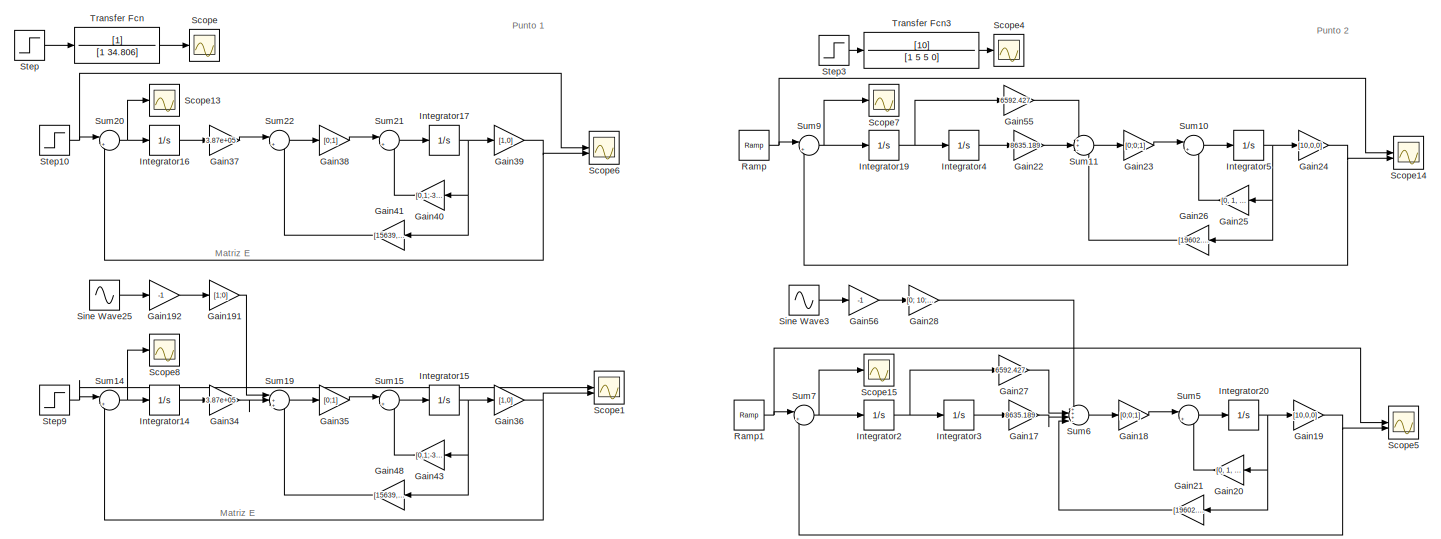
[diagram: root canvas - part 1/5, top left region]
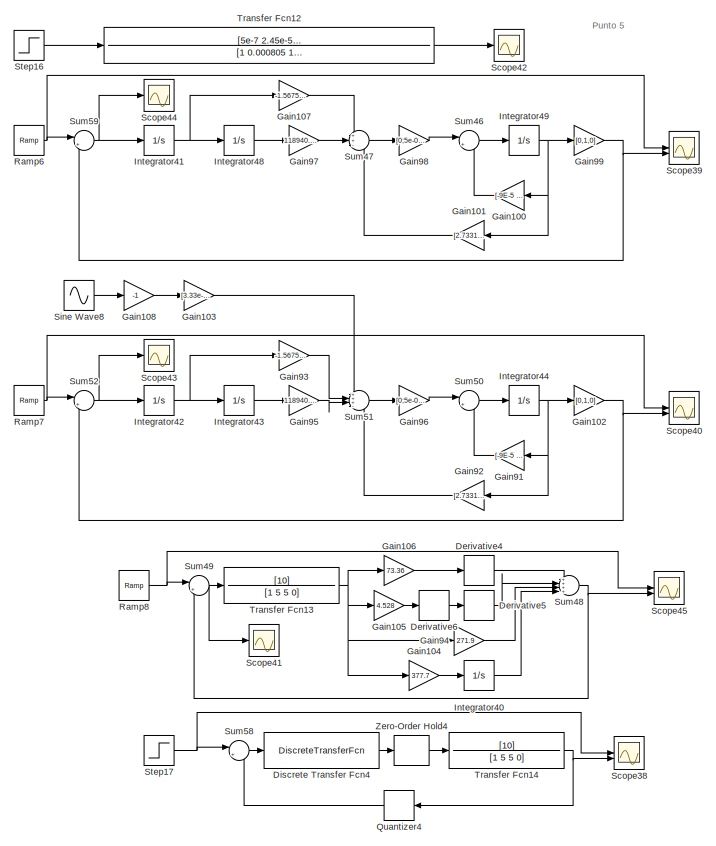
[diagram: root canvas - part 2/5, middle right region]
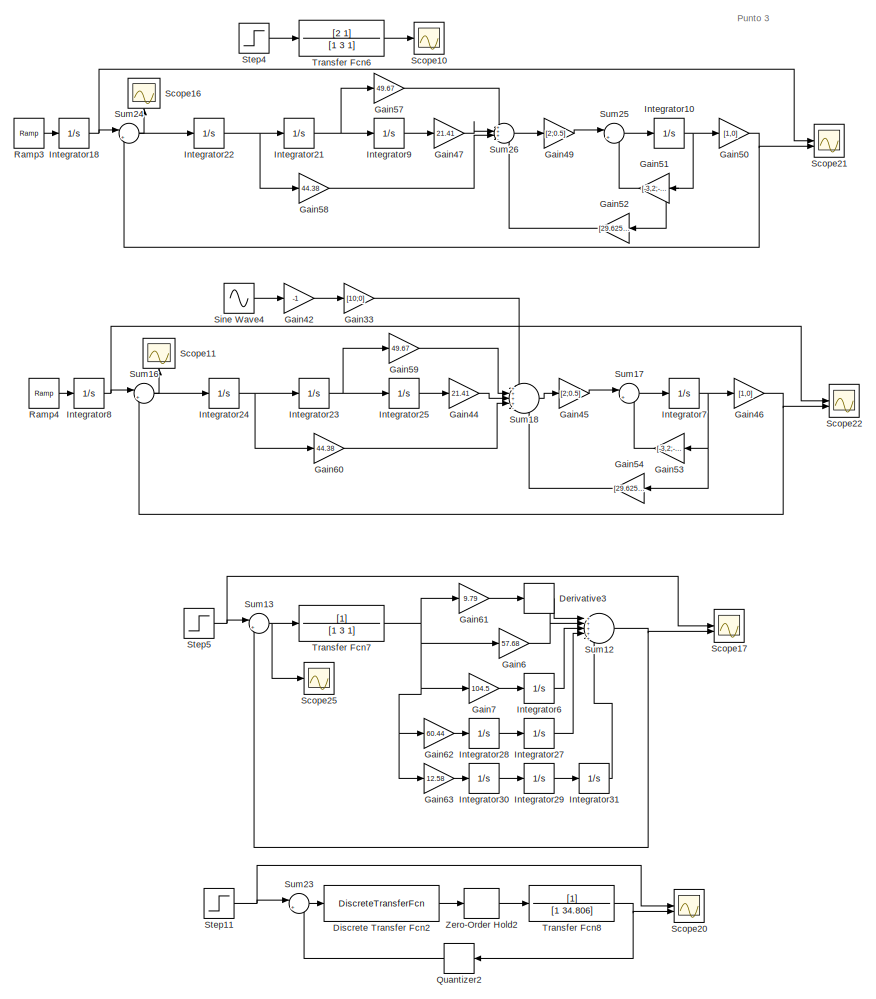
[diagram: root canvas - part 3/5, center side, full height]
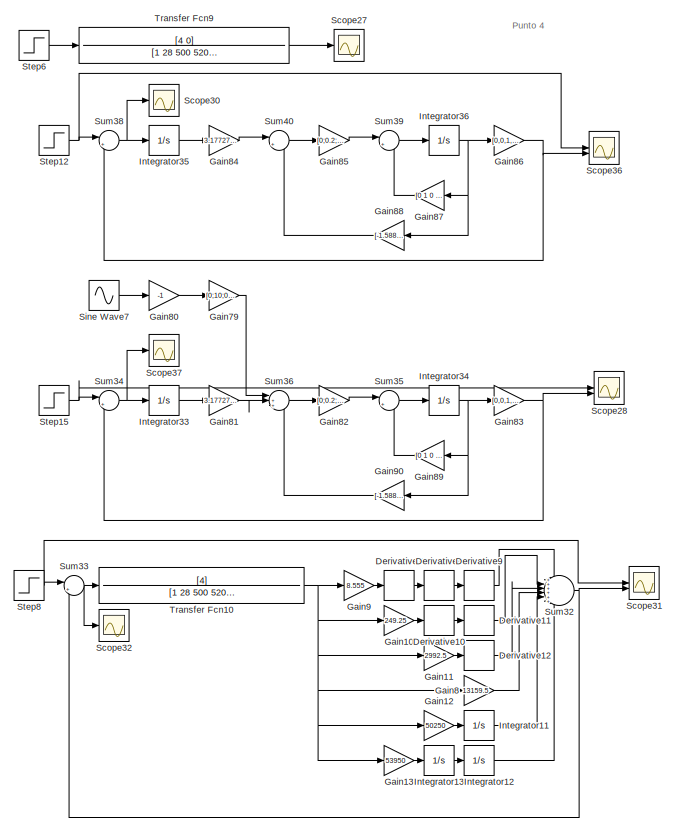
[diagram: root canvas - part 4/5, middle right region]
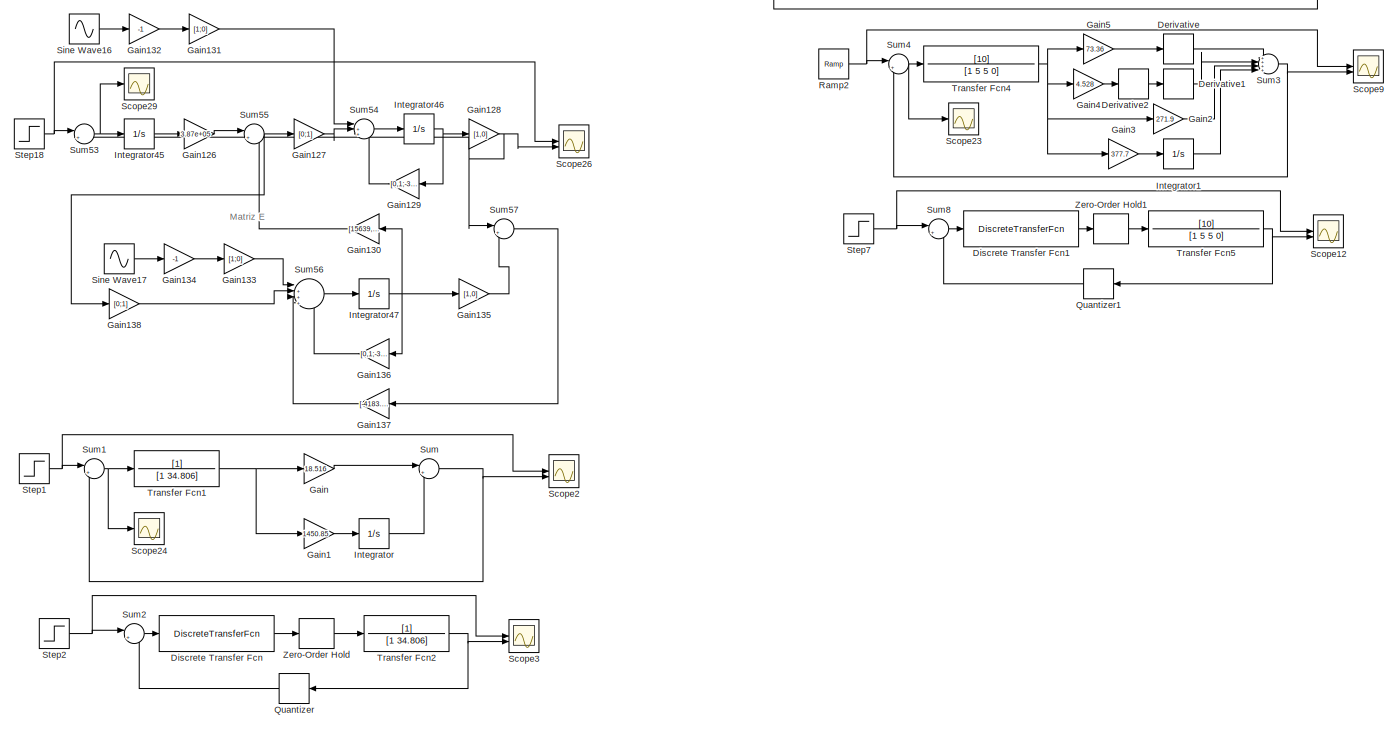
[diagram: root canvas - part 5/5, bottom left region]
MODEL slx_3155e59f31ec
KIND model
CONFIG AbsTol = auto
CONFIG EnableMultiTasking = off
CONFIG FixedStep = auto
CONFIG MaxStep = auto
CONFIG MinStep = auto
CONFIG RelTol = 1e-3
CONFIG SampleTimeConstraint = Unconstrained
CONFIG SolverName = VariableStepAuto
CONFIG StartTime = 0.0
CONFIG StopTime = 3
BLOCK [Derivative] Derivative
BLOCK [Derivative] Derivative1
BLOCK [Derivative] Derivative10
  Commented = on
BLOCK [Derivative] Derivative11
  Commented = on
BLOCK [Derivative] Derivative12
  Commented = on
BLOCK [Derivative] Derivative2
BLOCK [Derivative] Derivative3
BLOCK [Derivative] Derivative4
  Commented = on
BLOCK [Derivative] Derivative5
  Commented = on
BLOCK [Derivative] Derivative6
  Commented = on
BLOCK [Derivative] Derivative7
  Commented = on
BLOCK [Derivative] Derivative8
  Commented = on
BLOCK [Derivative] Derivative9
  Commented = on
BLOCK [DiscreteTransferFcn] Discrete Transfer Fcn
  Denominator = [1 -1]
  InputPortMap = u0
  Numerator = [67.835 -1450.85]
BLOCK [DiscreteTransferFcn] Discrete Transfer Fcn1
  Denominator = [201.24 690.31 -646.3 746.966]
  InputPortMap = u0
  Numerator = [1 -1]
BLOCK [DiscreteTransferFcn] Discrete Transfer Fcn2
  Denominator = [1 -1]
  InputPortMap = u0
  Numerator = [67.835 -1450.85]
BLOCK [DiscreteTransferFcn] Discrete Transfer Fcn4
  Commented = on
  Denominator = [201.24 690.31 -646.3 746.966]
  InputPortMap = u0
  Numerator = [1 -1]
BLOCK [Gain] Gain
  Gain = 18.516
BLOCK [Gain] Gain1
  Gain = 1450.85
BLOCK [Gain] Gain10
  Commented = on
  Gain = 249.25
BLOCK [Gain] Gain100
  Gain = [-9E-5 6E-5 0;9E-5 -0.000315 0.000125;0 0.00025 -0.0004]
  Multiplication = Matrix(K*u)
  NameLocation = top
BLOCK [Gain] Gain101
  Gain = [2.7331065953402523E+13 282834.44444416161 -2.8927722690874945E+11]
  Multiplication = Matrix(K*u)
  NameLocation = top
BLOCK [Gain] Gain102
  Gain = [0,1,0]
  Multiplication = Matrix(K*u)
BLOCK [Gain] Gain103
  Gain = [3.33e-05;0.0001;0]
  Multiplication = Matrix(K*u)
BLOCK [Gain] Gain104
  Commented = on
  Gain = 377.7
BLOCK [Gain] Gain105
  Commented = on
  Gain = 4.528
BLOCK [Gain] Gain106
  Commented = on
  Gain = 73.36
BLOCK [Gain] Gain107
  Gain = -1.5675305183754513E+9
BLOCK [Gain] Gain108
  Gain = -1
BLOCK [Gain] Gain11
  Commented = on
  Gain = 2992.5
BLOCK [Gain] Gain12
  Commented = on
  Gain = 50250
BLOCK [Gain] Gain126
  Gain = 3.87e+05
BLOCK [Gain] Gain127
  Gain = [0;1]
  Multiplication = Matrix(K*u)
BLOCK [Gain] Gain128
  Gain = [1,0]
  Multiplication = Matrix(K*u)
BLOCK [Gain] Gain129
  Gain = [0,1;-34.806,0]
  Multiplication = Matrix(K*u)
  NameLocation = top
BLOCK [Gain] Gain13
  Commented = on
  Gain = 53950
BLOCK [Gain] Gain130
  Gain = [15639,320]
  Multiplication = Matrix(K*u)
  NameLocation = top
BLOCK [Gain] Gain131
  Gain = [1;0]
  Multiplication = Matrix(K*u)
BLOCK [Gain] Gain132
  Gain = -1
BLOCK [Gain] Gain133
  Gain = [1;0]
  Multiplication = Matrix(K*u)
BLOCK [Gain] Gain134
  Gain = -1
BLOCK [Gain] Gain135
  Gain = [1,0]
  Multiplication = Matrix(K*u)
BLOCK [Gain] Gain136
  Gain = [0,1;-34.806,0]
  Multiplication = Matrix(K*u)
  NameLocation = top
BLOCK [Gain] Gain137
  Gain = [-4183.9;0]
  Multiplication = Matrix(K*u)
  NameLocation = top
BLOCK [Gain] Gain138
  Gain = [0;1]
  Multiplication = Matrix(K*u)
BLOCK [Gain] Gain17
  Gain = 8635.189
BLOCK [Gain] Gain18
  Gain = [0;0;1]
  Multiplication = Matrix(K*u)
BLOCK [Gain] Gain19
  Gain = [10,0,0]
  Multiplication = Matrix(K*u)
BLOCK [Gain] Gain191
  Gain = [1;0]
  Multiplication = Matrix(K*u)
BLOCK [Gain] Gain192
  Gain = -1
BLOCK [Gain] Gain2
  Gain = 271.9
BLOCK [Gain] Gain20
  Gain = [0, 1, 0; 0, 0, 1; 0, -5, -5]
  Multiplication = Matrix(K*u)
  NameLocation = top
BLOCK [Gain] Gain21
  Gain = [19602.55, 1883.05, 68.14]
  Multiplication = Matrix(K*u)
  NameLocation = top
BLOCK [Gain] Gain22
  Gain = 8635.189
BLOCK [Gain] Gain23
  Gain = [0;0;1]
  Multiplication = Matrix(K*u)
BLOCK [Gain] Gain24
  Gain = [10,0,0]
  Multiplication = Matrix(K*u)
BLOCK [Gain] Gain25
  Gain = [0, 1, 0; 0, 0, 1; 0, -5, -5]
  Multiplication = Matrix(K*u)
  NameLocation = top
BLOCK [Gain] Gain26
  Gain = [19602.55, 1883.05, 68.14]
  Multiplication = Matrix(K*u)
  NameLocation = top
BLOCK [Gain] Gain27
  Gain = 6592.427
BLOCK [Gain] Gain28
  Gain = [0; 10; 0]
  Multiplication = Matrix(K*u)
BLOCK [Gain] Gain3
  Gain = 377.7
BLOCK [Gain] Gain33
  Gain = [10;0]
  Multiplication = Matrix(K*u)
BLOCK [Gain] Gain34
  Gain = 3.87e+05
BLOCK [Gain] Gain35
  Gain = [0;1]
  Multiplication = Matrix(K*u)
BLOCK [Gain] Gain36
  Gain = [1,0]
  Multiplication = Matrix(K*u)
BLOCK [Gain] Gain37
  Gain = 3.87e+05
BLOCK [Gain] Gain38
  Gain = [0;1]
  Multiplication = Matrix(K*u)
BLOCK [Gain] Gain39
  Gain = [1,0]
  Multiplication = Matrix(K*u)
BLOCK [Gain] Gain4
  Gain = 4.528
BLOCK [Gain] Gain40
  Gain = [0,1;-34.806,0]
  Multiplication = Matrix(K*u)
  NameLocation = top
BLOCK [Gain] Gain41
  Gain = [15639,320]
  Multiplication = Matrix(K*u)
  NameLocation = top
BLOCK [Gain] Gain42
  Gain = -1
BLOCK [Gain] Gain43
  Gain = [0,1;-34.806,0]
  Multiplication = Matrix(K*u)
  NameLocation = top
BLOCK [Gain] Gain44
  Gain = 21.41
BLOCK [Gain] Gain45
  Gain = [2;0.5]
  Multiplication = Matrix(K*u)
BLOCK [Gain] Gain46
  Gain = [1,0]
  Multiplication = Matrix(K*u)
BLOCK [Gain] Gain47
  Gain = 21.41
BLOCK [Gain] Gain48
  Gain = [15639,320]
  Multiplication = Matrix(K*u)
  NameLocation = top
BLOCK [Gain] Gain49
  Gain = [2;0.5]
  Multiplication = Matrix(K*u)
BLOCK [Gain] Gain5
  Gain = 73.36
BLOCK [Gain] Gain50
  Gain = [1,0]
  Multiplication = Matrix(K*u)
BLOCK [Gain] Gain51
  Gain = [-3,2;-0.5,0]
  Multiplication = Matrix(K*u)
  NameLocation = top
BLOCK [Gain] Gain52
  Gain = [29.625,-96.055]
  Multiplication = Matrix(K*u)
  NameLocation = top
BLOCK [Gain] Gain53
  Gain = [-3,2;-0.5,0]
  Multiplication = Matrix(K*u)
  NameLocation = top
BLOCK [Gain] Gain54
  Gain = [29.625,-96.055]
  Multiplication = Matrix(K*u)
  NameLocation = top
BLOCK [Gain] Gain55
  Gain = 6592.427
BLOCK [Gain] Gain56
  Gain = -1
BLOCK [Gain] Gain57
  Gain = 49.67
BLOCK [Gain] Gain58
  Gain = 44.38
BLOCK [Gain] Gain59
  Gain = 49.67
BLOCK [Gain] Gain6
  Gain = 57.68
BLOCK [Gain] Gain60
  Gain = 44.38
BLOCK [Gain] Gain61
  Gain = 9.79
BLOCK [Gain] Gain62
  Gain = 60.44
BLOCK [Gain] Gain63
  Gain = 12.58
BLOCK [Gain] Gain7
  Gain = 104.5
BLOCK [Gain] Gain79
  Gain = [0;10;0;0]
  Multiplication = Matrix(K*u)
BLOCK [Gain] Gain8
  Commented = on
  Gain = 13159.5
BLOCK [Gain] Gain80
  Gain = -1
BLOCK [Gain] Gain81
  Gain = 3.1772716372436288E+14
BLOCK [Gain] Gain82
  Gain = [0;0.2;0;0]
  Multiplication = Matrix(K*u)
BLOCK [Gain] Gain83
  Gain = [0,0,1,0]
  Multiplication = Matrix(K*u)
BLOCK [Gain] Gain84
  Gain = 3.1772716372436288E+14
BLOCK [Gain] Gain85
  Gain = [0;0.2;0;0]
  Multiplication = Matrix(K*u)
BLOCK [Gain] Gain86
  Gain = [0,0,1,0]
  Multiplication = Matrix(K*u)
BLOCK [Gain] Gain87
  Gain = [0 1 0 0;-100 -8 0 8;0 0 0 1;0 20 -400 -20]
  Multiplication = Matrix(K*u)
  NameLocation = top
BLOCK [Gain] Gain88
  Gain = [-1.5886358186321061E+13 67.6956684856248 1.5886358185456043E+13 7.9431790932322864E+11]
  Multiplication = Matrix(K*u)
  NameLocation = top
BLOCK [Gain] Gain89
  Gain = [0 1 0 0;-100 -8 0 8;0 0 0 1;0 20 -400 -20]
  Multiplication = Matrix(K*u)
  NameLocation = top
BLOCK [Gain] Gain9
  Commented = on
  Gain = 8.555
BLOCK [Gain] Gain90
  Gain = [-1.5886358186321061E+13 67.6956684856248 1.5886358185456043E+13 7.9431790932322864E+11]
  Multiplication = Matrix(K*u)
  NameLocation = top
BLOCK [Gain] Gain91
  Gain = [-9E-5 6E-5 0;9E-5 -0.000315 0.000125;0 0.00025 -0.0004]
  Multiplication = Matrix(K*u)
  NameLocation = top
BLOCK [Gain] Gain92
  Gain = [2.7331065953402523E+13 282834.44444416161 -2.8927722690874945E+11]
  Multiplication = Matrix(K*u)
  NameLocation = top
BLOCK [Gain] Gain93
  Gain = -1.5675305183754513E+9
BLOCK [Gain] Gain94
  Commented = on
  Gain = 271.9
BLOCK [Gain] Gain95
  Gain = 118940.53439301325
BLOCK [Gain] Gain96
  Gain = [0;5e-07;0]
  Multiplication = Matrix(K*u)
BLOCK [Gain] Gain97
  Gain = 118940.53439301325
BLOCK [Gain] Gain98
  Gain = [0;5e-07;0]
  Multiplication = Matrix(K*u)
BLOCK [Gain] Gain99
  Gain = [0,1,0]
  Multiplication = Matrix(K*u)
BLOCK [Integrator] Integrator
BLOCK [Integrator] Integrator1
BLOCK [Integrator] Integrator10
BLOCK [Integrator] Integrator11
  Commented = on
BLOCK [Integrator] Integrator12
  Commented = on
BLOCK [Integrator] Integrator13
  Commented = on
BLOCK [Integrator] Integrator14
BLOCK [Integrator] Integrator15
BLOCK [Integrator] Integrator16
BLOCK [Integrator] Integrator17
BLOCK [Integrator] Integrator18
BLOCK [Integrator] Integrator19
BLOCK [Integrator] Integrator2
BLOCK [Integrator] Integrator20
BLOCK [Integrator] Integrator21
BLOCK [Integrator] Integrator22
BLOCK [Integrator] Integrator23
BLOCK [Integrator] Integrator24
BLOCK [Integrator] Integrator25
BLOCK [Integrator] Integrator27
BLOCK [Integrator] Integrator28
BLOCK [Integrator] Integrator29
BLOCK [Integrator] Integrator3
BLOCK [Integrator] Integrator30
BLOCK [Integrator] Integrator31
BLOCK [Integrator] Integrator33
BLOCK [Integrator] Integrator34
BLOCK [Integrator] Integrator35
BLOCK [Integrator] Integrator36
BLOCK [Integrator] Integrator4
BLOCK [Integrator] Integrator40
  Commented = on
BLOCK [Integrator] Integrator41
BLOCK [Integrator] Integrator42
BLOCK [Integrator] Integrator43
BLOCK [Integrator] Integrator44
BLOCK [Integrator] Integrator45
BLOCK [Integrator] Integrator46
BLOCK [Integrator] Integrator47
BLOCK [Integrator] Integrator48
BLOCK [Integrator] Integrator49
BLOCK [Integrator] Integrator5
BLOCK [Integrator] Integrator6
BLOCK [Integrator] Integrator7
BLOCK [Integrator] Integrator8
BLOCK [Integrator] Integrator9
BLOCK [Quantizer] Quantizer
  NameLocation = top
  QuantizationInterval = 3.3/1024
BLOCK [Quantizer] Quantizer1
  NameLocation = top
  QuantizationInterval = 3.3/1024
BLOCK [Quantizer] Quantizer2
  NameLocation = top
  QuantizationInterval = 3.3/1024
BLOCK [Quantizer] Quantizer4
  Commented = on
  NameLocation = top
  QuantizationInterval = 3.3/1024
BLOCK [Reference] Ramp  REF=simulink/Sources/Ramp
  SourceBlock = simulink/Sources/Ramp
  SourceType = Ramp
BLOCK [Reference] Ramp1  REF=simulink/Sources/Ramp
  SourceBlock = simulink/Sources/Ramp
  SourceType = Ramp
BLOCK [Reference] Ramp2  REF=simulink/Sources/Ramp
  SourceBlock = simulink/Sources/Ramp
  SourceType = Ramp
BLOCK [Reference] Ramp3  REF=simulink/Sources/Ramp
  SourceBlock = simulink/Sources/Ramp
  SourceType = Ramp
BLOCK [Reference] Ramp4  REF=simulink/Sources/Ramp
  SourceBlock = simulink/Sources/Ramp
  SourceType = Ramp
BLOCK [Reference] Ramp6  REF=simulink/Sources/Ramp
  SourceBlock = simulink/Sources/Ramp
  SourceType = Ramp
BLOCK [Reference] Ramp7  REF=simulink/Sources/Ramp
  SourceBlock = simulink/Sources/Ramp
  SourceType = Ramp
BLOCK [Reference] Ramp8  REF=simulink/Sources/Ramp
  Commented = on
  SourceBlock = simulink/Sources/Ramp
  SourceType = Ramp
BLOCK [Scope] Scope
  ActiveDisplayYMaximum = 0.031818468747388327
  ActiveDisplayYMinimum = -0.0071982318273006371
  Floating = off
  GraphicalSettings = {"Style":{"BackgroundColor":[0.12941176470588237,0.12941176470588237,0.12941176470588237],"AxesColor":[0.07058823529411765,0.07058823529411765,0.07058823529411765],"LabelsColor":[0.8509803921568627,0.8509803921568627,0.8509803921568627],"PreserveColors":false,"Visible":[true],"LineStyle":["-"],"LineWidth":[1.5],"BarWidth":[0.9],"LineColor":["auto"],"LineFaceAlpha":[1],"LineEdgeAlpha":[1],"Marker":...<+2017ch>
  MultipleDisplayCache = [{"MaxYLimMag":0.03231917454877823,"MaxYLimReal":0.031818468747388327,"MinYLimMag":0,"MinYLimReal":-0.0071982318273006371,"PlotAsMagnitudePhase":false,"ShowGrid":true,"ShowLegend":false,"Title":"%<SignalLabel>","YLabel":""}]
  NumInputPorts = 1
  ScopeFrameLocation = window
  WasSavedAsWebScope = on
  WindowPosition = [403.000000,174.000000,560.000000,420.000000,]
BLOCK [Scope] Scope1
  ActiveDisplayYMaximum = 1.1749566694180262
  ActiveDisplayYMinimum = -0.13055074104644734
  DataLoggingVariableName = ScopeData5
  Floating = off
  GraphicalSettings = {"Style":{"BackgroundColor":[1,1,1],"AxesColor":[1,1,1],"LabelsColor":[0.14901960784313725,0.14901960784313725,0.14901960784313725],"PreserveColors":false,"Visible":[true,true,true],"LineStyle":["-","-","-"],"LineWidth":[1.5,1.5,1.5],"BarWidth":[0.9,0.9,0.9],"LineColor":[[1,0,0],"auto","auto"],"LineFaceAlpha":[1,1,1],"LineEdgeAlpha":[1,1,1],"Marker":["none","none","none"],"FontSize":8.5,"LineTrueC...<+2076ch>
  MultipleDisplayCache = [{"MaxYLimMag":1.1749566694180262,"MaxYLimReal":1.1749566694180262,"MinYLimMag":0,"MinYLimReal":-0.13055074104644734,"PlotAsMagnitudePhase":false,"ShowGrid":true,"ShowLegend":true,"Title":"%<SignalLabel>","YLabel":""}]
  NumInputPorts = 2
  ScopeFrameLocation = window
  ShowLegend = on
  WasSavedAsWebScope = on
  WindowPosition = [488.000000,222.000000,560.000000,420.000000,]
BLOCK [Scope] Scope10
  ActiveDisplayYMaximum = 1.1239898312446026
  ActiveDisplayYMinimum = -0.12488775902717804
  DataLoggingVariableName = ScopeData3
  Floating = off
  GraphicalSettings = {"Style":{"BackgroundColor":[0.12941176470588237,0.12941176470588237,0.12941176470588237],"AxesColor":[0.07058823529411765,0.07058823529411765,0.07058823529411765],"LabelsColor":[0.8509803921568627,0.8509803921568627,0.8509803921568627],"PreserveColors":false,"Visible":[true],"LineStyle":["-"],"LineWidth":[1.5],"BarWidth":[0.9],"LineColor":["auto"],"LineFaceAlpha":[1],"LineEdgeAlpha":[1],"Marker":...<+2013ch>
  MultipleDisplayCache = [{"MaxYLimMag":1.1239898312446026,"MaxYLimReal":1.1239898312446026,"MinYLimMag":0,"MinYLimReal":-0.12488775902717804,"PlotAsMagnitudePhase":false,"ShowGrid":true,"ShowLegend":false,"Title":"%<SignalLabel>","YLabel":""}]
  NumInputPorts = 1
  ScopeFrameLocation = window
  WasSavedAsWebScope = on
  WindowPosition = [403.000000,174.000000,560.000000,420.000000,]
BLOCK [Scope] Scope11
  ActiveDisplayYMaximum = 1
  ActiveDisplayYMinimum = -1
  DataLoggingVariableName = ScopeData4
  Floating = off
  GraphicalSettings = {"Style":{"BackgroundColor":[1,1,1],"AxesColor":[1,1,1],"LabelsColor":[0.14901960784313725,0.14901960784313725,0.14901960784313725],"PreserveColors":false,"Visible":[true,true],"LineStyle":["-","-"],"LineWidth":[1.5,1.5],"BarWidth":[0.9,0.9],"LineColor":[[1,0,0],"auto"],"LineFaceAlpha":[1,1],"LineEdgeAlpha":[1,1],"Marker":["none","none"],"FontSize":8.5,"LineTrueColor":[[1,0,0],[0.06666666666666667...<+1981ch>
  MultipleDisplayCache = [{"MaxYLimMag":1,"MaxYLimReal":1,"MinYLimMag":0,"MinYLimReal":-1,"PlotAsMagnitudePhase":false,"ShowGrid":true,"ShowLegend":true,"Title":"%<SignalLabel>","YLabel":""}]
  NameLocation = right
  NumInputPorts = 1
  ScopeFrameLocation = window
  ShowLegend = on
  WasSavedAsWebScope = on
  WindowPosition = [488.000000,222.000000,560.000000,420.000000,]
BLOCK [Scope] Scope12
  ActiveDisplayYMaximum = 1.1703123918708805E+35
  ActiveDisplayYMinimum = -3.48363499121058E+35
  DataLoggingVariableName = ScopeData6
  Floating = off
  GraphicalSettings = {"Style":{"BackgroundColor":[0.12941176470588237,0.12941176470588237,0.12941176470588237],"AxesColor":[0.07058823529411765,0.07058823529411765,0.07058823529411765],"LabelsColor":[0.8509803921568627,0.8509803921568627,0.8509803921568627],"PreserveColors":false,"Visible":[true,true],"LineStyle":["-","-"],"LineWidth":[1.5,1.5],"BarWidth":[0.9,0.9],"LineColor":["auto","auto"],"LineFaceAlpha":[1,1],"Li...<+2145ch>
  MultipleDisplayCache = [{"MaxYLimMag":3.48363499121058E+35,"MaxYLimReal":1.1703123918708805E+35,"MinYLimMag":0,"MinYLimReal":-3.48363499121058E+35,"PlotAsMagnitudePhase":false,"ShowGrid":true,"ShowLegend":false,"Title":"%<SignalLabel>","YLabel":""}]
  NumInputPorts = 2
  ScopeFrameLocation = window
  WasSavedAsWebScope = on
  WindowPosition = [403.000000,174.000000,560.000000,420.000000,]
BLOCK [Scope] Scope13
  ActiveDisplayYMaximum = 1
  ActiveDisplayYMinimum = -1
  DataLoggingVariableName = ScopeData12
  Floating = off
  GraphicalSettings = {"Style":{"BackgroundColor":[1,1,1],"AxesColor":[1,1,1],"LabelsColor":[0.14901960784313725,0.14901960784313725,0.14901960784313725],"PreserveColors":false,"Visible":[true],"LineStyle":["-"],"LineWidth":[1.5],"BarWidth":[0.9],"LineColor":[[1,0,0]],"LineFaceAlpha":[1],"LineEdgeAlpha":[1],"Marker":["none"],"FontSize":8.5,"LineTrueColor":[[1,0,0]],"ChannelNames":[""],"DefaultLegendLabel":["Sum20"],"Pl...<+1753ch>
  MultipleDisplayCache = [{"MaxYLimMag":1,"MaxYLimReal":1,"MinYLimMag":0,"MinYLimReal":-1,"PlotAsMagnitudePhase":false,"ShowGrid":true,"ShowLegend":true,"Title":"%<SignalLabel>","YLabel":""}]
  NumInputPorts = 1
  ScopeFrameLocation = window
  ShowLegend = on
  WasSavedAsWebScope = on
  WindowPosition = [488.000000,222.000000,560.000000,420.000000,]
BLOCK [Scope] Scope14
  ActiveDisplayYMaximum = 5.625
  ActiveDisplayYMinimum = -0.62499999999999989
  DataLoggingVariableName = ScopeData8
  Floating = off
  GraphicalSettings = {"Style":{"BackgroundColor":[1,1,1],"AxesColor":[1,1,1],"LabelsColor":[0.14901960784313725,0.14901960784313725,0.14901960784313725],"PreserveColors":false,"Visible":[true,true],"LineStyle":["-","-"],"LineWidth":[1.5,1.5],"BarWidth":[0.9,0.9],"LineColor":[[1,0,0],"auto"],"LineFaceAlpha":[1,1],"LineEdgeAlpha":[1,1],"Marker":["none","none"],"FontSize":8.5,"LineTrueColor":[[1,0,0],[0.06666666666666667...<+1916ch>
  MultipleDisplayCache = [{"MaxYLimMag":5.625,"MaxYLimReal":5.625,"MinYLimMag":0,"MinYLimReal":-0.62499999999999989,"PlotAsMagnitudePhase":false,"ShowGrid":true,"ShowLegend":true,"Title":"%<SignalLabel>","YLabel":""}]
  NumInputPorts = 2
  ScopeFrameLocation = window
  ShowLegend = on
  WasSavedAsWebScope = on
  WindowPosition = [756.000000,222.000000,560.000000,420.000000,]
BLOCK [Scope] Scope15
  ActiveDisplayYMaximum = 0.27729553793845596
  ActiveDisplayYMinimum = -0.033671475717911077
  DataLoggingVariableName = ScopeData10
  Floating = off
  GraphicalSettings = {"Style":{"BackgroundColor":[1,1,1],"AxesColor":[1,1,1],"LabelsColor":[0.14901960784313725,0.14901960784313725,0.14901960784313725],"PreserveColors":false,"Visible":[true,true,true],"LineStyle":["-","-","-"],"LineWidth":[1.5,1.5,1.5],"BarWidth":[0.9,0.9,0.9],"LineColor":[[1,0,0],"auto","auto"],"LineFaceAlpha":[1,1,1],"LineEdgeAlpha":[1,1,1],"Marker":["none","none","none"],"FontSize":8.5,"LineTrueC...<+2075ch>
  MultipleDisplayCache = [{"MaxYLimMag":0.27729553793845596,"MaxYLimReal":0.27729553793845596,"MinYLimMag":0,"MinYLimReal":-0.033671475717911077,"PlotAsMagnitudePhase":false,"ShowGrid":true,"ShowLegend":true,"Title":"%<SignalLabel>","YLabel":""}]
  NumInputPorts = 1
  ScopeFrameLocation = window
  ShowLegend = on
  WasSavedAsWebScope = on
  WindowPosition = [488.000000,222.000000,560.000000,420.000000,]
BLOCK [Scope] Scope16
  ActiveDisplayYMaximum = 1
  ActiveDisplayYMinimum = -1
  DataLoggingVariableName = ScopeData16
  Floating = off
  GraphicalSettings = {"Style":{"BackgroundColor":[1,1,1],"AxesColor":[1,1,1],"LabelsColor":[0.14901960784313725,0.14901960784313725,0.14901960784313725],"PreserveColors":false,"Visible":[true],"LineStyle":["-"],"LineWidth":[1.5],"BarWidth":[0.9],"LineColor":[[1,0,0]],"LineFaceAlpha":[1],"LineEdgeAlpha":[1],"Marker":["none"],"FontSize":8.5,"LineTrueColor":[[1,0,0]],"ChannelNames":[""],"DefaultLegendLabel":["Sum24"],"Pl...<+1753ch>
  MultipleDisplayCache = [{"MaxYLimMag":1,"MaxYLimReal":1,"MinYLimMag":0,"MinYLimReal":-1,"PlotAsMagnitudePhase":false,"ShowGrid":true,"ShowLegend":true,"Title":"%<SignalLabel>","YLabel":""}]
  NameLocation = right
  NumInputPorts = 1
  ScopeFrameLocation = window
  ShowLegend = on
  WasSavedAsWebScope = on
  WindowPosition = [488.000000,222.000000,560.000000,420.000000,]
BLOCK [Scope] Scope17
  ActiveDisplayYMaximum = 1.3621421831967044
  ActiveDisplayYMinimum = -0.15134913146630047
  DataLoggingVariableName = ScopeData17
  Floating = off
  GraphicalSettings = {"Style":{"BackgroundColor":[0.12941176470588237,0.12941176470588237,0.12941176470588237],"AxesColor":[0.07058823529411765,0.07058823529411765,0.07058823529411765],"LabelsColor":[0.8509803921568627,0.8509803921568627,0.8509803921568627],"PreserveColors":false,"Visible":[true,true],"LineStyle":["-","-"],"LineWidth":[1.5,1.5],"BarWidth":[0.9,0.9],"LineColor":["auto","auto"],"LineFaceAlpha":[1,1],"Li...<+2108ch>
  MultipleDisplayCache = [{"MaxYLimMag":1.3621421831967044,"MaxYLimReal":1.3621421831967044,"MinYLimMag":0,"MinYLimReal":-0.15134913146630047,"PlotAsMagnitudePhase":false,"ShowGrid":true,"ShowLegend":false,"Title":"%<SignalLabel>","YLabel":""}]
  NumInputPorts = 2
  ScopeFrameLocation = window
  WasSavedAsWebScope = on
  WindowPosition = [403.000000,174.000000,560.000000,420.000000,]
BLOCK [Scope] Scope2
  ActiveDisplayYMaximum = 1.1868710389307595
  ActiveDisplayYMinimum = -0.13187455988119548
  DataLoggingVariableName = ScopeData1
  Floating = off
  GraphicalSettings = {"Style":{"BackgroundColor":[0.12941176470588237,0.12941176470588237,0.12941176470588237],"AxesColor":[0.07058823529411765,0.07058823529411765,0.07058823529411765],"LabelsColor":[0.8509803921568627,0.8509803921568627,0.8509803921568627],"PreserveColors":false,"Visible":[true,true],"LineStyle":["-","-"],"LineWidth":[1.5,1.5],"BarWidth":[0.9,0.9],"LineColor":["auto","auto"],"LineFaceAlpha":[1,1],"Li...<+2104ch>  <repeated x4 — deduplicated; at blocks: Scope2, Scope31, Scope45, Scope9>
  MultipleDisplayCache = [{"MaxYLimMag":1.1868710389307595,"MaxYLimReal":1.1868710389307595,"MinYLimMag":0,"MinYLimReal":-0.13187455988119548,"PlotAsMagnitudePhase":false,"ShowGrid":true,"ShowLegend":false,"Title":"%<SignalLabel>","YLabel":""}]
  NumInputPorts = 2
  ScopeFrameLocation = window
  WasSavedAsWebScope = on
  WindowPosition = [403.000000,174.000000,560.000000,420.000000,]
BLOCK [Scope] Scope20
  ActiveDisplayYMaximum = 1
  ActiveDisplayYMinimum = -1
  DataLoggingVariableName = ScopeData20
  Floating = off
  GraphicalSettings = {"Style":{"BackgroundColor":[0.12941176470588237,0.12941176470588237,0.12941176470588237],"AxesColor":[0.07058823529411765,0.07058823529411765,0.07058823529411765],"LabelsColor":[0.8509803921568627,0.8509803921568627,0.8509803921568627],"PreserveColors":false,"Visible":[true,true],"LineStyle":["-","-"],"LineWidth":[1.5,1.5],"BarWidth":[0.9,0.9],"LineColor":["auto","auto"],"LineFaceAlpha":[1,1],"Li...<+2019ch>
  MultipleDisplayCache = [{"MaxYLimMag":1,"MaxYLimReal":1,"MinYLimMag":0,"MinYLimReal":-1,"PlotAsMagnitudePhase":false,"ShowGrid":true,"ShowLegend":false,"Title":"%<SignalLabel>","YLabel":""}]
  NumInputPorts = 2
  ScopeFrameLocation = window
  WasSavedAsWebScope = on
  WindowPosition = [403.000000,174.000000,560.000000,420.000000,]
BLOCK [Scope] Scope21
  ActiveDisplayYMaximum = 9.1784446559609183
  ActiveDisplayYMinimum = -1.0198271839956574
  DataLoggingVariableName = ScopeData21
  Floating = off
  GraphicalSettings = {"Style":{"BackgroundColor":[1,1,1],"AxesColor":[1,1,1],"LabelsColor":[0.14901960784313725,0.14901960784313725,0.14901960784313725],"PreserveColors":false,"Visible":[true,true],"LineStyle":["-","-"],"LineWidth":[1.5,1.5],"BarWidth":[0.9,0.9],"LineColor":[[1,0,0],"auto"],"LineFaceAlpha":[1,1],"LineEdgeAlpha":[1,1],"Marker":["none","none"],"FontSize":8.5,"LineTrueColor":[[1,0,0],[0.06666666666666667...<+1984ch>
  MultipleDisplayCache = [{"MaxYLimMag":9.1784446559609183,"MaxYLimReal":9.1784446559609183,"MinYLimMag":0,"MinYLimReal":-1.0198271839956574,"PlotAsMagnitudePhase":false,"ShowGrid":true,"ShowLegend":true,"Title":"%<SignalLabel>","YLabel":""}]
  NumInputPorts = 2
  ScopeFrameLocation = window
  ShowLegend = on
  WasSavedAsWebScope = on
  WindowPosition = [756.000000,222.000000,560.000000,420.000000,]
BLOCK [Scope] Scope22
  ActiveDisplayYMaximum = 126.56297642265379
  ActiveDisplayYMinimum = -14.062552935850418
  DataLoggingVariableName = ScopeData22
  Floating = off
  GraphicalSettings = {"Style":{"BackgroundColor":[1,1,1],"AxesColor":[1,1,1],"LabelsColor":[0.14901960784313725,0.14901960784313725,0.14901960784313725],"PreserveColors":false,"Visible":[true,true,true],"LineStyle":["-","-","-"],"LineWidth":[1.5,1.5,1.5],"BarWidth":[0.9,0.9,0.9],"LineColor":[[1,0,0],"auto","auto"],"LineFaceAlpha":[1,1,1],"LineEdgeAlpha":[1,1,1],"Marker":["none","none","none"],"FontSize":8.5,"LineTrueC...<+2086ch>
  MultipleDisplayCache = [{"MaxYLimMag":126.56297642265379,"MaxYLimReal":126.56297642265379,"MinYLimMag":0,"MinYLimReal":-14.062552935850418,"PlotAsMagnitudePhase":false,"ShowGrid":true,"ShowLegend":true,"Title":"%<SignalLabel>","YLabel":""}]
  NumInputPorts = 2
  ScopeFrameLocation = window
  ShowLegend = on
  WasSavedAsWebScope = on
  WindowPosition = [756.000000,222.000000,560.000000,420.000000,]
BLOCK [Scope] Scope23
  DataLoggingVariableName = ScopeData23
  Floating = off
  GraphicalSettings = {"GraphicalSettings":{"LegacySettings":true,"Style":{"Style":{"PlotType":"Auto"}}}}
  NumInputPorts = 1
  ScopeFrameLocation = window
  WasSavedAsWebScope = on
  WindowPosition = [403.000000,174.000000,560.000000,420.000000,]
BLOCK [Scope] Scope24
  DataLoggingVariableName = ScopeData24
  Floating = off
  GraphicalSettings = {"GraphicalSettings":{"LegacySettings":true,"Style":{"Style":{"PlotType":"Auto"}}}}
  NumInputPorts = 1
  WasSavedAsWebScope = on
BLOCK [Scope] Scope25
  ActiveDisplayYMaximum = 1.1513491314663005
  ActiveDisplayYMinimum = -0.36214218319670444
  DataLoggingVariableName = ScopeData26
  Floating = off
  GraphicalSettings = {"Style":{"BackgroundColor":[0.12941176470588237,0.12941176470588237,0.12941176470588237],"AxesColor":[0.07058823529411765,0.07058823529411765,0.07058823529411765],"LabelsColor":[0.8509803921568627,0.8509803921568627,0.8509803921568627],"PreserveColors":false,"Visible":[true],"LineStyle":["-"],"LineWidth":[1.5],"BarWidth":[0.9],"LineColor":["auto"],"LineFaceAlpha":[1],"LineEdgeAlpha":[1],"Marker":...<+1898ch>
  MultipleDisplayCache = [{"MaxYLimMag":1.1513491314663005,"MaxYLimReal":1.1513491314663005,"MinYLimMag":0,"MinYLimReal":-0.36214218319670444,"PlotAsMagnitudePhase":false,"ShowGrid":true,"ShowLegend":false,"Title":"%<SignalLabel>","YLabel":""}]
  NumInputPorts = 1
  ScopeFrameLocation = window
  WasSavedAsWebScope = on
  WindowPosition = [403.000000,174.000000,560.000000,420.000000,]
BLOCK [Scope] Scope26
  ActiveDisplayYMaximum = 1
  ActiveDisplayYMinimum = -1
  DataLoggingVariableName = ScopeData25
  Floating = off
  GraphicalSettings = {"Style":{"BackgroundColor":[1,1,1],"AxesColor":[1,1,1],"LabelsColor":[0.14901960784313725,0.14901960784313725,0.14901960784313725],"PreserveColors":false,"Visible":[true,true],"LineStyle":["-","-"],"LineWidth":[1.5,1.5],"BarWidth":[0.9,0.9],"LineColor":[[1,0,0],[0.06666666666666667,0.44313725490196076,0.7450980392156863]],"LineFaceAlpha":[1,1],"LineEdgeAlpha":[1,1],"Marker":["none","none"],"FontS...<+1925ch>
  MultipleDisplayCache = [{"MaxYLimMag":1,"MaxYLimReal":1,"MinYLimMag":0,"MinYLimReal":-1,"PlotAsMagnitudePhase":false,"ShowGrid":true,"ShowLegend":true,"Title":"%<SignalLabel>","YLabel":""}]
  NumInputPorts = 2
  ScopeFrameLocation = window
  ShowLegend = on
  WasSavedAsWebScope = on
  WindowPosition = [488.000000,222.000000,560.000000,420.000000,]
BLOCK [Scope] Scope27
  ActiveDisplayYMaximum = 0.00092074928311051279
  ActiveDisplayYMinimum = -0.00057991321568763013
  DataLoggingVariableName = ScopeData27
  Floating = off
  GraphicalSettings = {"Style":{"BackgroundColor":[0.12941176470588237,0.12941176470588237,0.12941176470588237],"AxesColor":[0.07058823529411765,0.07058823529411765,0.07058823529411765],"LabelsColor":[0.8509803921568627,0.8509803921568627,0.8509803921568627],"PreserveColors":false,"Visible":[true],"LineStyle":["-"],"LineWidth":[1.5],"BarWidth":[0.9],"LineColor":["auto"],"LineFaceAlpha":[1],"LineEdgeAlpha":[1],"Marker":...<+2029ch>
  MultipleDisplayCache = [{"MaxYLimMag":0.00092074928311051279,"MaxYLimReal":0.00092074928311051279,"MinYLimMag":0,"MinYLimReal":-0.00057991321568763013,"PlotAsMagnitudePhase":false,"ShowGrid":true,"ShowLegend":false,"Title":"%<SignalLabel>","YLabel":""}]
  NumInputPorts = 1
  ScopeFrameLocation = window
  WasSavedAsWebScope = on
  WindowPosition = [403.000000,174.000000,560.000000,420.000000,]
BLOCK [Scope] Scope28
  ActiveDisplayYMaximum = 4.7210954470720673E+10
  ActiveDisplayYMinimum = -5.245661607857852E+9
  DataLoggingVariableName = ScopeData29
  Floating = off
  GraphicalSettings = {"Style":{"BackgroundColor":[1,1,1],"AxesColor":[1,1,1],"LabelsColor":[0.14901960784313725,0.14901960784313725,0.14901960784313725],"PreserveColors":false,"Visible":[true,true,true,true,true],"LineStyle":["-","-","-","-","-"],"LineWidth":[1.5,1.5,1.5,1.5,1.5],"BarWidth":[0.9,0.9,0.9,0.9,0.9],"LineColor":[[1,0,0],"auto","auto","auto","auto"],"LineFaceAlpha":[1,1,1,1,1],"LineEdgeAlpha":[1,1,1,1,1],"...<+2313ch>
  MultipleDisplayCache = [{"MaxYLimMag":4.7210954470720673E+10,"MaxYLimReal":4.7210954470720673E+10,"MinYLimMag":0,"MinYLimReal":-5.245661607857852E+9,"PlotAsMagnitudePhase":false,"ShowGrid":true,"ShowLegend":true,"Title":"%<SignalLabel>","YLabel":""}]
  NumInputPorts = 2
  ScopeFrameLocation = window
  ShowLegend = on
  WasSavedAsWebScope = on
  WindowPosition = [488.000000,222.000000,560.000000,420.000000,]
BLOCK [Scope] Scope29
  ActiveDisplayYMaximum = 0.031291334113195061
  ActiveDisplayYMinimum = -0.003476814901466117
  DataLoggingVariableName = ScopeData28
  Floating = off
  GraphicalSettings = {"Style":{"BackgroundColor":[1,1,1],"AxesColor":[1,1,1],"LabelsColor":[0.14901960784313725,0.14901960784313725,0.14901960784313725],"PreserveColors":false,"Visible":[true],"LineStyle":["-"],"LineWidth":[1.5],"BarWidth":[0.9],"LineColor":[[1,0,0]],"LineFaceAlpha":[1],"LineEdgeAlpha":[1],"Marker":["none"],"FontSize":8.5,"LineTrueColor":[[1,0,0]],"ChannelNames":[""],"DefaultLegendLabel":["Transfer Fc...<+1944ch>
  MultipleDisplayCache = [{"MaxYLimMag":0.031291334113195061,"MaxYLimReal":0.031291334113195061,"MinYLimMag":0,"MinYLimReal":-0.003476814901466117,"PlotAsMagnitudePhase":false,"ShowGrid":true,"ShowLegend":true,"Title":"%<SignalLabel>","YLabel":""}]
  NumInputPorts = 1
  ScopeFrameLocation = window
  ShowLegend = on
  WasSavedAsWebScope = on
  WindowPosition = [488.000000,222.000000,560.000000,420.000000,]
BLOCK [Scope] Scope3
  ActiveDisplayYMaximum = 1
  ActiveDisplayYMinimum = -1
  DataLoggingVariableName = ScopeData2
  Floating = off
  GraphicalSettings = {"Style":{"BackgroundColor":[0.12941176470588237,0.12941176470588237,0.12941176470588237],"AxesColor":[0.07058823529411765,0.07058823529411765,0.07058823529411765],"LabelsColor":[0.8509803921568627,0.8509803921568627,0.8509803921568627],"PreserveColors":false,"Visible":[true,true],"LineStyle":["-","-"],"LineWidth":[1.5,1.5],"BarWidth":[0.9,0.9],"LineColor":["auto","auto"],"LineFaceAlpha":[1,1],"Li...<+2019ch>
  MultipleDisplayCache = [{"MaxYLimMag":1,"MaxYLimReal":1,"MinYLimMag":0,"MinYLimReal":-1,"PlotAsMagnitudePhase":false,"ShowGrid":true,"ShowLegend":false,"Title":"%<SignalLabel>","YLabel":""}]
  NumInputPorts = 2
  ScopeFrameLocation = window
  WasSavedAsWebScope = on
  WindowPosition = [403.000000,174.000000,560.000000,420.000000,]
BLOCK [Scope] Scope30
  ActiveDisplayYMaximum = 1
  ActiveDisplayYMinimum = -1
  DataLoggingVariableName = ScopeData30
  Floating = off
  GraphicalSettings = {"Style":{"BackgroundColor":[1,1,1],"AxesColor":[1,1,1],"LabelsColor":[0.14901960784313725,0.14901960784313725,0.14901960784313725],"PreserveColors":false,"Visible":[true],"LineStyle":["-"],"LineWidth":[1.5],"BarWidth":[0.9],"LineColor":[[1,0,0]],"LineFaceAlpha":[1],"LineEdgeAlpha":[1],"Marker":["none"],"FontSize":8.5,"LineTrueColor":[[1,0,0]],"ChannelNames":[""],"DefaultLegendLabel":["Sum38"],"Pl...<+1753ch>
  MultipleDisplayCache = [{"MaxYLimMag":1,"MaxYLimReal":1,"MinYLimMag":0,"MinYLimReal":-1,"PlotAsMagnitudePhase":false,"ShowGrid":true,"ShowLegend":true,"Title":"%<SignalLabel>","YLabel":""}]
  NumInputPorts = 1
  ScopeFrameLocation = window
  ShowLegend = on
  WasSavedAsWebScope = on
  WindowPosition = [488.000000,222.000000,560.000000,420.000000,]
BLOCK [Scope] Scope31
  ActiveDisplayYMaximum = 1.1868710389307595
  ActiveDisplayYMinimum = -0.13187455988119548
  Commented = on
  DataLoggingVariableName = ScopeData31
  Floating = off
  MultipleDisplayCache = [{"MaxYLimMag":1.1868710389307595,"MaxYLimReal":1.1868710389307595,"MinYLimMag":0,"MinYLimReal":-0.13187455988119548,"PlotAsMagnitudePhase":false,"ShowGrid":true,"ShowLegend":false,"Title":"%<SignalLabel>","YLabel":""}]
  NumInputPorts = 2
  ScopeFrameLocation = window
  WasSavedAsWebScope = on
  WindowPosition = [403.000000,174.000000,560.000000,420.000000,]
BLOCK [Scope] Scope32
  Commented = on
  DataLoggingVariableName = ScopeData32
  Floating = off
  GraphicalSettings = {"GraphicalSettings":{"LegacySettings":true,"Style":{"Style":{"PlotType":"Auto"}}}}
  NumInputPorts = 1
  WasSavedAsWebScope = on
BLOCK [Scope] Scope36
  ActiveDisplayYMaximum = 4.7210715614782E+10
  ActiveDisplayYMinimum = -5.24563506830911E+9
  DataLoggingVariableName = ScopeData36
  Floating = off
  GraphicalSettings = {"Style":{"BackgroundColor":[1,1,1],"AxesColor":[1,1,1],"LabelsColor":[0.14901960784313725,0.14901960784313725,0.14901960784313725],"PreserveColors":false,"Visible":[true,true],"LineStyle":["-","-"],"LineWidth":[1.5,1.5],"BarWidth":[0.9,0.9],"LineColor":[[1,0,0],"auto"],"LineFaceAlpha":[1,1],"LineEdgeAlpha":[1,1],"Marker":["none","none"],"FontSize":8.5,"LineTrueColor":[[1,0,0],[0.06666666666666667...<+1956ch>
  MultipleDisplayCache = [{"MaxYLimMag":4.7210715614782E+10,"MaxYLimReal":4.7210715614782E+10,"MinYLimMag":0,"MinYLimReal":-5.24563506830911E+9,"PlotAsMagnitudePhase":false,"ShowGrid":true,"ShowLegend":true,"Title":"%<SignalLabel>","YLabel":""}]
  NumInputPorts = 2
  ScopeFrameLocation = window
  ShowLegend = on
  WasSavedAsWebScope = on
  WindowPosition = [756.000000,222.000000,560.000000,420.000000,]
BLOCK [Scope] Scope37
  ActiveDisplayYMaximum = 1
  ActiveDisplayYMinimum = -1
  DataLoggingVariableName = ScopeData37
  Floating = off
  GraphicalSettings = {"Style":{"BackgroundColor":[1,1,1],"AxesColor":[1,1,1],"LabelsColor":[0.14901960784313725,0.14901960784313725,0.14901960784313725],"PreserveColors":false,"Visible":[true,true],"LineStyle":["-","-"],"LineWidth":[1.5,1.5],"BarWidth":[0.9,0.9],"LineColor":[[1,0,0],"auto"],"LineFaceAlpha":[1,1],"LineEdgeAlpha":[1,1],"Marker":["none","none"],"FontSize":8.5,"LineTrueColor":[[1,0,0],[0.06666666666666667...<+1973ch>
  MultipleDisplayCache = [{"MaxYLimMag":1,"MaxYLimReal":1,"MinYLimMag":0,"MinYLimReal":-1,"PlotAsMagnitudePhase":false,"ShowGrid":true,"ShowLegend":true,"Title":"%<SignalLabel>","YLabel":""}]
  NumInputPorts = 1
  ScopeFrameLocation = window
  ShowLegend = on
  WasSavedAsWebScope = on
  WindowPosition = [488.000000,222.000000,560.000000,420.000000,]
BLOCK [Scope] Scope38
  ActiveDisplayYMaximum = 1.1703123918708805E+35
  ActiveDisplayYMinimum = -3.48363499121058E+35
  Commented = on
  DataLoggingVariableName = ScopeData38
  Floating = off
  GraphicalSettings = {"Style":{"BackgroundColor":[0.12941176470588237,0.12941176470588237,0.12941176470588237],"AxesColor":[0.07058823529411765,0.07058823529411765,0.07058823529411765],"LabelsColor":[0.8509803921568627,0.8509803921568627,0.8509803921568627],"PreserveColors":false,"Visible":[true,true],"LineStyle":["-","-"],"LineWidth":[1.5,1.5],"BarWidth":[0.9,0.9],"LineColor":["auto","auto"],"LineFaceAlpha":[1,1],"Li...<+2145ch>
  MultipleDisplayCache = [{"MaxYLimMag":3.48363499121058E+35,"MaxYLimReal":1.1703123918708805E+35,"MinYLimMag":0,"MinYLimReal":-3.48363499121058E+35,"PlotAsMagnitudePhase":false,"ShowGrid":true,"ShowLegend":false,"Title":"%<SignalLabel>","YLabel":""}]
  NumInputPorts = 2
  ScopeFrameLocation = window
  WasSavedAsWebScope = on
  WindowPosition = [403.000000,174.000000,560.000000,420.000000,]
BLOCK [Scope] Scope39
  ActiveDisplayYMaximum = 911.6949573245696
  ActiveDisplayYMinimum = -8165.2546159211288
  DataLoggingVariableName = ScopeData39
  Floating = off
  GraphicalSettings = {"Style":{"BackgroundColor":[1,1,1],"AxesColor":[1,1,1],"LabelsColor":[0.14901960784313725,0.14901960784313725,0.14901960784313725],"PreserveColors":false,"Visible":[true,true],"LineStyle":["-","-"],"LineWidth":[1.5,1.5],"BarWidth":[0.9,0.9],"LineColor":[[1,0,0],"auto"],"LineFaceAlpha":[1,1],"LineEdgeAlpha":[1,1],"Marker":["none","none"],"FontSize":8.5,"LineTrueColor":[[1,0,0],[0.06666666666666667...<+1966ch>
  MultipleDisplayCache = [{"MaxYLimMag":8165.2546159211288,"MaxYLimReal":911.6949573245696,"MinYLimMag":0,"MinYLimReal":-8165.2546159211288,"PlotAsMagnitudePhase":false,"ShowGrid":true,"ShowLegend":true,"Title":"%<SignalLabel>","YLabel":""}]
  NumInputPorts = 2
  ScopeFrameLocation = window
  ShowLegend = on
  WasSavedAsWebScope = on
  WindowPosition = [756.000000,222.000000,560.000000,420.000000,]
BLOCK [Scope] Scope4
  ActiveDisplayYMaximum = 2.41580131918185
  ActiveDisplayYMinimum = -0.26842236879798326
  DataLoggingVariableName = ScopeData11
  Floating = off
  GraphicalSettings = {"Style":{"BackgroundColor":[0.12941176470588237,0.12941176470588237,0.12941176470588237],"AxesColor":[0.07058823529411765,0.07058823529411765,0.07058823529411765],"LabelsColor":[0.8509803921568627,0.8509803921568627,0.8509803921568627],"PreserveColors":false,"Visible":[true],"LineStyle":["-"],"LineWidth":[1.5],"BarWidth":[0.9],"LineColor":["auto"],"LineFaceAlpha":[1],"LineEdgeAlpha":[1],"Marker":...<+2009ch>
  MultipleDisplayCache = [{"MaxYLimMag":2.41580131918185,"MaxYLimReal":2.41580131918185,"MinYLimMag":0,"MinYLimReal":-0.26842236879798326,"PlotAsMagnitudePhase":false,"ShowGrid":true,"ShowLegend":false,"Title":"%<SignalLabel>","YLabel":""}]
  NumInputPorts = 1
  ScopeFrameLocation = window
  WasSavedAsWebScope = on
  WindowPosition = [403.000000,174.000000,560.000000,420.000000,]
BLOCK [Scope] Scope40
  ActiveDisplayYMaximum = 1.9129703378474237E+6
  ActiveDisplayYMinimum = -5.63952560953284E+6
  DataLoggingVariableName = ScopeData40
  Floating = off
  GraphicalSettings = {"Style":{"BackgroundColor":[1,1,1],"AxesColor":[1,1,1],"LabelsColor":[0.14901960784313725,0.14901960784313725,0.14901960784313725],"PreserveColors":false,"Visible":[true,true,true,true],"LineStyle":["-","-","-","-"],"LineWidth":[1.5,1.5,1.5,1.5],"BarWidth":[0.9,0.9,0.9,0.9],"LineColor":[[1,0,0],"auto","auto","auto"],"LineFaceAlpha":[1,1,1,1],"LineEdgeAlpha":[1,1,1,1],"Marker":["none","none","none...<+2190ch>
  MultipleDisplayCache = [{"MaxYLimMag":5.63952560953284E+6,"MaxYLimReal":1.9129703378474237E+6,"MinYLimMag":0,"MinYLimReal":-5.63952560953284E+6,"PlotAsMagnitudePhase":false,"ShowGrid":true,"ShowLegend":true,"Title":"%<SignalLabel>","YLabel":""}]
  NumInputPorts = 2
  ScopeFrameLocation = window
  ShowLegend = on
  WasSavedAsWebScope = on
  WindowPosition = [756.000000,222.000000,560.000000,420.000000,]
BLOCK [Scope] Scope41
  Commented = on
  DataLoggingVariableName = ScopeData41
  Floating = off
  GraphicalSettings = {"GraphicalSettings":{"LegacySettings":true,"Style":{"Style":{"PlotType":"Auto"}}}}
  NumInputPorts = 1
  ScopeFrameLocation = window
  WasSavedAsWebScope = on
  WindowPosition = [403.000000,174.000000,560.000000,420.000000,]
BLOCK [Scope] Scope42
  ActiveDisplayYMaximum = 3.0168535244846248
  ActiveDisplayYMinimum = -0.33520594716495827
  DataLoggingVariableName = ScopeData42
  Floating = off
  GraphicalSettings = {"Style":{"BackgroundColor":[0.12941176470588237,0.12941176470588237,0.12941176470588237],"AxesColor":[0.07058823529411765,0.07058823529411765,0.07058823529411765],"LabelsColor":[0.8509803921568627,0.8509803921568627,0.8509803921568627],"PreserveColors":false,"Visible":[true],"LineStyle":["-"],"LineWidth":[1.5],"BarWidth":[0.9],"LineColor":["auto"],"LineFaceAlpha":[1],"LineEdgeAlpha":[1],"Marker":...<+2013ch>
  MultipleDisplayCache = [{"MaxYLimMag":3.0168535244846248,"MaxYLimReal":3.0168535244846248,"MinYLimMag":0,"MinYLimReal":-0.33520594716495827,"PlotAsMagnitudePhase":false,"ShowGrid":true,"ShowLegend":false,"Title":"%<SignalLabel>","YLabel":""}]
  NumInputPorts = 1
  ScopeFrameLocation = window
  WasSavedAsWebScope = on
  WindowPosition = [403.000000,174.000000,560.000000,420.000000,]
BLOCK [Scope] Scope43
  ActiveDisplayYMaximum = 5.5810175747817233E+6
  ActiveDisplayYMinimum = -1.9029513689588776E+6
  DataLoggingVariableName = ScopeData43
  Floating = off
  GraphicalSettings = {"Style":{"BackgroundColor":[1,1,1],"AxesColor":[1,1,1],"LabelsColor":[0.14901960784313725,0.14901960784313725,0.14901960784313725],"PreserveColors":false,"Visible":[true],"LineStyle":["-"],"LineWidth":[1.5],"BarWidth":[0.9],"LineColor":[[1,0,0]],"LineFaceAlpha":[1],"LineEdgeAlpha":[1],"Marker":["none"],"FontSize":8.5,"LineTrueColor":[[1,0,0]],"ChannelNames":[""],"DefaultLegendLabel":["Sum59"],"Pl...<+1753ch>
  MultipleDisplayCache = [{"MaxYLimMag":5.5810175747817233E+6,"MaxYLimReal":5.5810175747817233E+6,"MinYLimMag":0,"MinYLimReal":-1.9029513689588776E+6,"PlotAsMagnitudePhase":false,"ShowGrid":true,"ShowLegend":true,"Title":"%<SignalLabel>","YLabel":""}]
  NumInputPorts = 1
  ScopeFrameLocation = window
  ShowLegend = on
  WasSavedAsWebScope = on
  WindowPosition = [488.000000,222.000000,560.000000,420.000000,]
BLOCK [Scope] Scope44
  ActiveDisplayYMaximum = 1
  ActiveDisplayYMinimum = -1
  DataLoggingVariableName = ScopeData44
  Floating = off
  GraphicalSettings = {"Style":{"BackgroundColor":[1,1,1],"AxesColor":[1,1,1],"LabelsColor":[0.14901960784313725,0.14901960784313725,0.14901960784313725],"PreserveColors":false,"Visible":[true],"LineStyle":["-"],"LineWidth":[1.5],"BarWidth":[0.9],"LineColor":[[1,0,0]],"LineFaceAlpha":[1],"LineEdgeAlpha":[1],"Marker":["none"],"FontSize":8.5,"LineTrueColor":[[1,0,0]],"ChannelNames":[""],"DefaultLegendLabel":["Sum59"],"Pl...<+1753ch>
  MultipleDisplayCache = [{"MaxYLimMag":1,"MaxYLimReal":1,"MinYLimMag":0,"MinYLimReal":-1,"PlotAsMagnitudePhase":false,"ShowGrid":true,"ShowLegend":true,"Title":"%<SignalLabel>","YLabel":""}]
  NumInputPorts = 1
  ScopeFrameLocation = window
  ShowLegend = on
  WasSavedAsWebScope = on
  WindowPosition = [488.000000,222.000000,560.000000,420.000000,]
BLOCK [Scope] Scope45
  ActiveDisplayYMaximum = 11.250000000009472
  ActiveDisplayYMinimum = -1.2500000000852405
  Commented = on
  DataLoggingVariableName = ScopeData45
  Floating = off
  MultipleDisplayCache = [{"MaxYLimMag":11.250000000009472,"MaxYLimReal":11.250000000009472,"MinYLimMag":0,"MinYLimReal":-1.2500000000852405,"PlotAsMagnitudePhase":false,"ShowGrid":true,"ShowLegend":false,"Title":"%<SignalLabel>","YLabel":""}]
  NumInputPorts = 2
  ScopeFrameLocation = window
  WasSavedAsWebScope = on
  WindowPosition = [403.000000,174.000000,560.000000,420.000000,]
BLOCK [Scope] Scope5
  ActiveDisplayYMaximum = 5.625
  ActiveDisplayYMinimum = -0.62499999999999989
  DataLoggingVariableName = ScopeData13
  Floating = off
  GraphicalSettings = {"Style":{"BackgroundColor":[1,1,1],"AxesColor":[1,1,1],"LabelsColor":[0.14901960784313725,0.14901960784313725,0.14901960784313725],"PreserveColors":false,"Visible":[true,true,true,true],"LineStyle":["-","-","-","-"],"LineWidth":[1.5,1.5,1.5,1.5],"BarWidth":[0.9,0.9,0.9,0.9],"LineColor":[[1,0,0],"auto","auto","auto"],"LineFaceAlpha":[1,1,1,1],"LineEdgeAlpha":[1,1,1,1],"Marker":["none","none","none...<+2140ch>
  MultipleDisplayCache = [{"MaxYLimMag":5.625,"MaxYLimReal":5.625,"MinYLimMag":0,"MinYLimReal":-0.62499999999999989,"PlotAsMagnitudePhase":false,"ShowGrid":true,"ShowLegend":true,"Title":"%<SignalLabel>","YLabel":""}]
  NumInputPorts = 2
  ScopeFrameLocation = window
  ShowLegend = on
  WasSavedAsWebScope = on
  WindowPosition = [756.000000,222.000000,560.000000,420.000000,]
BLOCK [Scope] Scope6
  ActiveDisplayYMaximum = 1.1761237840687349
  ActiveDisplayYMinimum = -0.13068042045208161
  DataLoggingVariableName = ScopeData9
  Floating = off
  GraphicalSettings = {"Style":{"BackgroundColor":[1,1,1],"AxesColor":[1,1,1],"LabelsColor":[0.14901960784313725,0.14901960784313725,0.14901960784313725],"PreserveColors":false,"Visible":[true,true],"LineStyle":["-","-"],"LineWidth":[1.5,1.5],"BarWidth":[0.9,0.9],"LineColor":[[1,0,0],"auto"],"LineFaceAlpha":[1,1],"LineEdgeAlpha":[1,1],"Marker":["none","none"],"FontSize":8.5,"LineTrueColor":[[1,0,0],[0.06666666666666667...<+1974ch>
  MultipleDisplayCache = [{"MaxYLimMag":1.1761237840687349,"MaxYLimReal":1.1761237840687349,"MinYLimMag":0,"MinYLimReal":-0.13068042045208161,"PlotAsMagnitudePhase":false,"ShowGrid":true,"ShowLegend":true,"Title":"%<SignalLabel>","YLabel":""}]
  NumInputPorts = 2
  ScopeFrameLocation = window
  ShowLegend = on
  WasSavedAsWebScope = on
  WindowPosition = [756.000000,222.000000,560.000000,420.000000,]
BLOCK [Scope] Scope7
  ActiveDisplayYMaximum = 1
  ActiveDisplayYMinimum = -1
  DataLoggingVariableName = ScopeData14
  Floating = off
  GraphicalSettings = {"Style":{"BackgroundColor":[1,1,1],"AxesColor":[1,1,1],"LabelsColor":[0.14901960784313725,0.14901960784313725,0.14901960784313725],"PreserveColors":false,"Visible":[true],"LineStyle":["-"],"LineWidth":[1.5],"BarWidth":[0.9],"LineColor":[[1,0,0]],"LineFaceAlpha":[1],"LineEdgeAlpha":[1],"Marker":["none"],"FontSize":8.5,"LineTrueColor":[[1,0,0]],"ChannelNames":[""],"DefaultLegendLabel":["Sum9"],"Plo...<+1751ch>
  MultipleDisplayCache = [{"MaxYLimMag":1,"MaxYLimReal":1,"MinYLimMag":0,"MinYLimReal":-1,"PlotAsMagnitudePhase":false,"ShowGrid":true,"ShowLegend":true,"Title":"%<SignalLabel>","YLabel":""}]
  NumInputPorts = 1
  ScopeFrameLocation = window
  ShowLegend = on
  WasSavedAsWebScope = on
  WindowPosition = [488.000000,222.000000,560.000000,420.000000,]
BLOCK [Scope] Scope8
  ActiveDisplayYMaximum = 1
  ActiveDisplayYMinimum = -1
  DataLoggingVariableName = ScopeData7
  Floating = off
  GraphicalSettings = {"Style":{"BackgroundColor":[1,1,1],"AxesColor":[1,1,1],"LabelsColor":[0.14901960784313725,0.14901960784313725,0.14901960784313725],"PreserveColors":false,"Visible":[true,true],"LineStyle":["-","-"],"LineWidth":[1.5,1.5],"BarWidth":[0.9,0.9],"LineColor":[[1,0,0],"auto"],"LineFaceAlpha":[1,1],"LineEdgeAlpha":[1,1],"Marker":["none","none"],"FontSize":8.5,"LineTrueColor":[[1,0,0],[0.06666666666666667...<+1973ch>
  MultipleDisplayCache = [{"MaxYLimMag":1,"MaxYLimReal":1,"MinYLimMag":0,"MinYLimReal":-1,"PlotAsMagnitudePhase":false,"ShowGrid":true,"ShowLegend":true,"Title":"%<SignalLabel>","YLabel":""}]
  NumInputPorts = 1
  ScopeFrameLocation = window
  ShowLegend = on
  WasSavedAsWebScope = on
  WindowPosition = [488.000000,222.000000,560.000000,420.000000,]
BLOCK [Scope] Scope9
  ActiveDisplayYMaximum = 11.250000000009472
  ActiveDisplayYMinimum = -1.2500000000852405
  DataLoggingVariableName = ScopeData15
  Floating = off
  MultipleDisplayCache = [{"MaxYLimMag":11.250000000009472,"MaxYLimReal":11.250000000009472,"MinYLimMag":0,"MinYLimReal":-1.2500000000852405,"PlotAsMagnitudePhase":false,"ShowGrid":true,"ShowLegend":false,"Title":"%<SignalLabel>","YLabel":""}]
  NumInputPorts = 2
  ScopeFrameLocation = window
  WasSavedAsWebScope = on
  WindowPosition = [403.000000,174.000000,560.000000,420.000000,]
BLOCK [Sin] Sine Wave16
  SampleTime = 0
BLOCK [Sin] Sine Wave17
  SampleTime = 0
BLOCK [Sin] Sine Wave25
  SampleTime = 0
BLOCK [Sin] Sine Wave3
  SampleTime = 0
BLOCK [Sin] Sine Wave4
  SampleTime = 0
BLOCK [Sin] Sine Wave7
  SampleTime = 0
BLOCK [Sin] Sine Wave8
  SampleTime = 0
BLOCK [Step] Step
  SampleTime = 0
  Time = 0
BLOCK [Step] Step1
  SampleTime = 0
  Time = 0
BLOCK [Step] Step10
  SampleTime = 0
  Time = 0
BLOCK [Step] Step11
  SampleTime = 0
  Time = 0
BLOCK [Step] Step12
  SampleTime = 0
  Time = 0
BLOCK [Step] Step15
  SampleTime = 0
  Time = 0
BLOCK [Step] Step16
  SampleTime = 0
  Time = 0
BLOCK [Step] Step17
  Commented = on
  SampleTime = 0
  Time = 0
BLOCK [Step] Step18
  SampleTime = 0
  Time = 0
BLOCK [Step] Step2
  SampleTime = 0
  Time = 0
BLOCK [Step] Step3
  SampleTime = 0
  Time = 0
BLOCK [Step] Step4
  SampleTime = 0
  Time = 0
BLOCK [Step] Step5
  SampleTime = 0
  Time = 0
BLOCK [Step] Step6
  SampleTime = 0
  Time = 0
BLOCK [Step] Step7
  SampleTime = 0
  Time = 0
BLOCK [Step] Step8
  Commented = on
  SampleTime = 0
  Time = 0
BLOCK [Step] Step9
  SampleTime = 0
  Time = 0
BLOCK [Sum] Sum
  Inputs = |++
BLOCK [Sum] Sum1
  Inputs = |+-
BLOCK [Sum] Sum10
  Inputs = |++
BLOCK [Sum] Sum11
  Inputs = ++-
BLOCK [Sum] Sum12
  Inputs = +++++
BLOCK [Sum] Sum13
  Inputs = |+-
BLOCK [Sum] Sum14
  Inputs = |+-
BLOCK [Sum] Sum15
  Inputs = |++
BLOCK [Sum] Sum16
  Inputs = |+-
BLOCK [Sum] Sum17
  Inputs = |++
BLOCK [Sum] Sum18
  Inputs = ++++-
BLOCK [Sum] Sum19
  Inputs = |++-
BLOCK [Sum] Sum2
  Inputs = |+-
BLOCK [Sum] Sum20
  Inputs = |+-
BLOCK [Sum] Sum21
  Inputs = |++
BLOCK [Sum] Sum22
  Inputs = |+-
BLOCK [Sum] Sum23
  Inputs = |+-
BLOCK [Sum] Sum24
  Inputs = |+-
BLOCK [Sum] Sum25
  Inputs = |++
BLOCK [Sum] Sum26
  Inputs = +++-
BLOCK [Sum] Sum3
  Inputs = ++++
BLOCK [Sum] Sum32
  Commented = on
  Inputs = ++++++
BLOCK [Sum] Sum33
  Commented = on
  Inputs = |+-
BLOCK [Sum] Sum34
  Inputs = |+-
BLOCK [Sum] Sum35
  Inputs = |++
BLOCK [Sum] Sum36
  Inputs = |++-
BLOCK [Sum] Sum38
  Inputs = |+-
BLOCK [Sum] Sum39
  Inputs = |++
BLOCK [Sum] Sum4
  Inputs = |+-
BLOCK [Sum] Sum40
  Inputs = |+-
BLOCK [Sum] Sum46
  Inputs = |++
BLOCK [Sum] Sum47
  Inputs = ++-
BLOCK [Sum] Sum48
  Commented = on
  Inputs = ++++
BLOCK [Sum] Sum49
  Commented = on
  Inputs = |+-
BLOCK [Sum] Sum5
  Inputs = |++
BLOCK [Sum] Sum50
  Inputs = |++
BLOCK [Sum] Sum51
  Inputs = +++-
BLOCK [Sum] Sum52
  Inputs = |+-
BLOCK [Sum] Sum53
  Inputs = |+-
BLOCK [Sum] Sum54
  Inputs = |+++
BLOCK [Sum] Sum55
  Inputs = |+-
BLOCK [Sum] Sum56
  Inputs = |++++
BLOCK [Sum] Sum57
  Inputs = |+-
  NameLocation = top
BLOCK [Sum] Sum58
  Commented = on
  Inputs = |+-
BLOCK [Sum] Sum59
  Inputs = |+-
BLOCK [Sum] Sum6
  Inputs = +++-
BLOCK [Sum] Sum7
  Inputs = |+-
BLOCK [Sum] Sum8
  Inputs = |+-
BLOCK [Sum] Sum9
  Inputs = |+-
BLOCK [TransferFcn] Transfer Fcn
  Denominator = [1 34.806]
BLOCK [TransferFcn] Transfer Fcn1
  Denominator = [1 34.806]
BLOCK [TransferFcn] Transfer Fcn10
  Commented = on
  Denominator = [1 28 500 5200 40000]
  Numerator = [4]
BLOCK [TransferFcn] Transfer Fcn12
  Denominator = [1 0.000805 1.537e-7 6.368e-12]
  Numerator = [5e-7 2.45e-5 1.8e-14]
BLOCK [TransferFcn] Transfer Fcn13
  Commented = on
  Denominator = [1 5 5 0]
  Numerator = [10]
BLOCK [TransferFcn] Transfer Fcn14
  Commented = on
  Denominator = [1 5 5 0]
  Numerator = [10]
BLOCK [TransferFcn] Transfer Fcn2
  Denominator = [1 34.806]
BLOCK [TransferFcn] Transfer Fcn3
  Denominator = [1 5 5 0]
  Numerator = [10]
BLOCK [TransferFcn] Transfer Fcn4
  Denominator = [1 5 5 0]
  Numerator = [10]
BLOCK [TransferFcn] Transfer Fcn5
  Denominator = [1 5 5 0]
  Numerator = [10]
BLOCK [TransferFcn] Transfer Fcn6
  Denominator = [1 3 1]
  Numerator = [2 1]
BLOCK [TransferFcn] Transfer Fcn7
  Denominator = [1 3 1]
BLOCK [TransferFcn] Transfer Fcn8
  Denominator = [1 34.806]
BLOCK [TransferFcn] Transfer Fcn9
  Denominator = [1 28 500 5200 40000]
  Numerator = [4 0]
BLOCK [ZeroOrderHold] Zero-Order Hold
  SampleTime = 0.01
BLOCK [ZeroOrderHold] Zero-Order Hold1
  SampleTime = 0.15
BLOCK [ZeroOrderHold] Zero-Order Hold2
  SampleTime = 0.01
BLOCK [ZeroOrderHold] Zero-Order Hold4
  Commented = on
  SampleTime = 0.15
ANNOTATION (root): Punto 1
ANNOTATION (root): Punto 2
ANNOTATION (root): Punto 3
ANNOTATION (root): Punto 4
ANNOTATION (root): Punto 5
ANNOTATION (root): Matriz E
LINE Derivative10:1 -> Derivative11:1
LINE Derivative11:1 -> Sum32:2
LINE Derivative12:1 -> Sum32:3
LINE Derivative1:1 -> Sum3:2
LINE Derivative2:1 -> Derivative1:1
LINE Derivative3:1 -> Sum12:1
LINE Derivative4:1 -> Sum48:1
LINE Derivative5:1 -> Sum48:2
LINE Derivative6:1 -> Derivative5:1
LINE Derivative7:1 -> Derivative8:1
LINE Derivative8:1 -> Derivative9:1
LINE Derivative9:1 -> Sum32:1
LINE Derivative:1 -> Sum3:1
LINE Discrete Transfer Fcn1:1 -> Zero-Order Hold1:1
LINE Discrete Transfer Fcn2:1 -> Zero-Order Hold2:1
LINE Discrete Transfer Fcn4:1 -> Zero-Order Hold4:1
LINE Discrete Transfer Fcn:1 -> Zero-Order Hold:1
LINE Gain100:1 -> Sum46:2
LINE Gain101:1 -> Sum47:3
NET Gain102:1 -> Scope40:2, Sum52:2
LINE Gain103:1 -> Sum51:1
LINE Gain104:1 -> Integrator40:1
LINE Gain105:1 -> Derivative6:1
LINE Gain106:1 -> Derivative4:1
LINE Gain107:1 -> Sum47:1
LINE Gain108:1 -> Gain103:1
LINE Gain10:1 -> Derivative10:1
LINE Gain11:1 -> Derivative12:1
LINE Gain126:1 -> Sum55:1
LINE Gain127:1 -> Sum54:2
NET Gain128:1 -> Scope26:2, Sum53:2, Sum57:1
LINE Gain129:1 -> Sum54:3
LINE Gain12:1 -> Integrator11:1
LINE Gain130:1 -> Sum55:2
LINE Gain131:1 -> Sum54:1
LINE Gain132:1 -> Gain131:1
LINE Gain133:1 -> Sum56:1
LINE Gain134:1 -> Gain133:1
LINE Gain135:1 -> Sum57:2
LINE Gain136:1 -> Sum56:4
LINE Gain137:1 -> Sum56:3
LINE Gain138:1 -> Sum56:2
LINE Gain13:1 -> Integrator13:1
LINE Gain17:1 -> Sum6:3
LINE Gain18:1 -> Sum5:1
LINE Gain191:1 -> Sum19:1
LINE Gain192:1 -> Gain191:1
NET Gain19:1 -> Scope5:2, Sum7:2
LINE Gain1:1 -> Integrator:1
LINE Gain20:1 -> Sum5:2
LINE Gain21:1 -> Sum6:4
LINE Gain22:1 -> Sum11:2
LINE Gain23:1 -> Sum10:1
NET Gain24:1 -> Scope14:2, Sum9:2
LINE Gain25:1 -> Sum10:2
LINE Gain26:1 -> Sum11:3
LINE Gain27:1 -> Sum6:2
LINE Gain28:1 -> Sum6:1
LINE Gain2:1 -> Sum3:3
LINE Gain33:1 -> Sum18:1
LINE Gain34:1 -> Sum19:2
LINE Gain35:1 -> Sum15:1
NET Gain36:1 -> Scope1:2, Sum14:2
LINE Gain37:1 -> Sum22:1
LINE Gain38:1 -> Sum21:1
NET Gain39:1 -> Scope6:2, Sum20:2
LINE Gain3:1 -> Integrator1:1
LINE Gain40:1 -> Sum21:2
LINE Gain41:1 -> Sum22:2
LINE Gain42:1 -> Gain33:1
LINE Gain43:1 -> Sum15:2
LINE Gain44:1 -> Sum18:3
LINE Gain45:1 -> Sum17:1
NET Gain46:1 -> Scope22:2, Sum16:2
LINE Gain47:1 -> Sum26:2
LINE Gain48:1 -> Sum19:3
LINE Gain49:1 -> Sum25:1
LINE Gain4:1 -> Derivative2:1
NET Gain50:1 -> Scope21:2, Sum24:2
LINE Gain51:1 -> Sum25:2
LINE Gain52:1 -> Sum26:4
LINE Gain53:1 -> Sum17:2
LINE Gain54:1 -> Sum18:5
LINE Gain55:1 -> Sum11:1
LINE Gain56:1 -> Gain28:1
LINE Gain57:1 -> Sum26:1
LINE Gain58:1 -> Sum26:3
LINE Gain59:1 -> Sum18:2
LINE Gain5:1 -> Derivative:1
LINE Gain60:1 -> Sum18:4
LINE Gain61:1 -> Derivative3:1
LINE Gain62:1 -> Integrator28:1
LINE Gain63:1 -> Integrator30:1
LINE Gain6:1 -> Sum12:2
LINE Gain79:1 -> Sum36:1
LINE Gain7:1 -> Integrator6:1
LINE Gain80:1 -> Gain79:1
LINE Gain81:1 -> Sum36:2
LINE Gain82:1 -> Sum35:1
NET Gain83:1 -> Scope28:2, Sum34:2
LINE Gain84:1 -> Sum40:1
LINE Gain85:1 -> Sum39:1
NET Gain86:1 -> Scope36:2, Sum38:2
LINE Gain87:1 -> Sum39:2
LINE Gain88:1 -> Sum40:2
LINE Gain89:1 -> Sum35:2
LINE Gain8:1 -> Sum32:4
LINE Gain90:1 -> Sum36:3
LINE Gain91:1 -> Sum50:2
LINE Gain92:1 -> Sum51:4
LINE Gain93:1 -> Sum51:2
LINE Gain94:1 -> Sum48:3
LINE Gain95:1 -> Sum51:3
LINE Gain96:1 -> Sum50:1
LINE Gain97:1 -> Sum47:2
LINE Gain98:1 -> Sum46:1
NET Gain99:1 -> Scope39:2, Sum59:2
LINE Gain9:1 -> Derivative7:1
LINE Gain:1 -> Sum:1
NET Integrator10:1 -> Gain50:1, Gain51:1, Gain52:1
LINE Integrator11:1 -> Sum32:5
LINE Integrator12:1 -> Sum32:6
LINE Integrator13:1 -> Integrator12:1
LINE Integrator14:1 -> Gain34:1
NET Integrator15:1 -> Gain36:1, Gain43:1, Gain48:1
LINE Integrator16:1 -> Gain37:1
NET Integrator17:1 -> Gain39:1, Gain40:1, Gain41:1
NET Integrator18:1 -> Scope21:1, Sum24:1
NET Integrator19:1 -> Gain55:1, Integrator4:1
LINE Integrator1:1 -> Sum3:4
NET Integrator20:1 -> Gain19:1, Gain20:1, Gain21:1
NET Integrator21:1 -> Gain57:1, Integrator9:1
NET Integrator22:1 -> Gain58:1, Integrator21:1
NET Integrator23:1 -> Gain59:1, Integrator25:1
NET Integrator24:1 -> Gain60:1, Integrator23:1
LINE Integrator25:1 -> Gain44:1
LINE Integrator27:1 -> Sum12:4
LINE Integrator28:1 -> Integrator27:1
LINE Integrator29:1 -> Integrator31:1
NET Integrator2:1 -> Gain27:1, Integrator3:1
LINE Integrator30:1 -> Integrator29:1
LINE Integrator31:1 -> Sum12:5
LINE Integrator33:1 -> Gain81:1
NET Integrator34:1 -> Gain83:1, Gain89:1, Gain90:1
LINE Integrator35:1 -> Gain84:1
NET Integrator36:1 -> Gain86:1, Gain87:1, Gain88:1
LINE Integrator3:1 -> Gain17:1
LINE Integrator40:1 -> Sum48:4
NET Integrator41:1 -> Gain107:1, Integrator48:1
NET Integrator42:1 -> Gain93:1, Integrator43:1
LINE Integrator43:1 -> Gain95:1
NET Integrator44:1 -> Gain102:1, Gain91:1, Gain92:1
LINE Integrator45:1 -> Gain126:1
NET Integrator46:1 -> Gain128:1, Gain129:1
NET Integrator47:1 -> Gain130:1, Gain135:1, Gain136:1
LINE Integrator48:1 -> Gain97:1
NET Integrator49:1 -> Gain100:1, Gain101:1, Gain99:1
LINE Integrator4:1 -> Gain22:1
NET Integrator5:1 -> Gain24:1, Gain25:1, Gain26:1
LINE Integrator6:1 -> Sum12:3
NET Integrator7:1 -> Gain46:1, Gain53:1, Gain54:1
NET Integrator8:1 -> Scope22:1, Sum16:1
LINE Integrator9:1 -> Gain47:1
LINE Integrator:1 -> Sum:2
LINE Quantizer1:1 -> Sum8:2
LINE Quantizer2:1 -> Sum23:2
LINE Quantizer4:1 -> Sum58:2
LINE Quantizer:1 -> Sum2:2
NET Ramp1:1 -> Scope5:1, Sum7:1
NET Ramp2:1 -> Scope9:1, Sum4:1
LINE Ramp3:1 -> Integrator18:1
LINE Ramp4:1 -> Integrator8:1
NET Ramp6:1 -> Scope39:1, Sum59:1
NET Ramp7:1 -> Scope40:1, Sum52:1
NET Ramp8:1 -> Scope45:1, Sum49:1
NET Ramp:1 -> Scope14:1, Sum9:1
LINE Sine Wave16:1 -> Gain132:1
LINE Sine Wave17:1 -> Gain134:1
LINE Sine Wave25:1 -> Gain192:1
LINE Sine Wave3:1 -> Gain56:1
LINE Sine Wave4:1 -> Gain42:1
LINE Sine Wave7:1 -> Gain80:1
LINE Sine Wave8:1 -> Gain108:1
NET Step10:1 -> Scope6:1, Sum20:1
NET Step11:1 -> Scope20:1, Sum23:1
NET Step12:1 -> Scope36:1, Sum38:1
NET Step15:1 -> Scope28:1, Sum34:1
LINE Step16:1 -> Transfer Fcn12:1
NET Step17:1 -> Scope38:1, Sum58:1
NET Step18:1 -> Scope26:1, Sum53:1
NET Step1:1 -> Scope2:1, Sum1:1
NET Step2:1 -> Scope3:1, Sum2:1
LINE Step3:1 -> Transfer Fcn3:1
LINE Step4:1 -> Transfer Fcn6:1
NET Step5:1 -> Scope17:1, Sum13:1
LINE Step6:1 -> Transfer Fcn9:1
NET Step7:1 -> Scope12:1, Sum8:1
NET Step8:1 -> Scope31:1, Sum33:1
NET Step9:1 -> Scope1:1, Sum14:1
LINE Step:1 -> Transfer Fcn:1
LINE Sum10:1 -> Integrator5:1
LINE Sum11:1 -> Gain23:1
NET Sum12:1 -> Scope17:2, Sum13:2
NET Sum13:1 -> Scope25:1, Transfer Fcn7:1
NET Sum14:1 -> Integrator14:1, Scope8:1
LINE Sum15:1 -> Integrator15:1
NET Sum16:1 -> Integrator24:1, Scope11:1
LINE Sum17:1 -> Integrator7:1
LINE Sum18:1 -> Gain45:1
LINE Sum19:1 -> Gain35:1
NET Sum1:1 -> Scope24:1, Transfer Fcn1:1
NET Sum20:1 -> Integrator16:1, Scope13:1
LINE Sum21:1 -> Integrator17:1
LINE Sum22:1 -> Gain38:1
LINE Sum23:1 -> Discrete Transfer Fcn2:1
NET Sum24:1 -> Integrator22:1, Scope16:1
LINE Sum25:1 -> Integrator10:1
LINE Sum26:1 -> Gain49:1
LINE Sum2:1 -> Discrete Transfer Fcn:1
NET Sum32:1 -> Scope31:2, Sum33:2
NET Sum33:1 -> Scope32:1, Transfer Fcn10:1
NET Sum34:1 -> Integrator33:1, Scope37:1
LINE Sum35:1 -> Integrator34:1
LINE Sum36:1 -> Gain82:1
NET Sum38:1 -> Integrator35:1, Scope30:1
LINE Sum39:1 -> Integrator36:1
NET Sum3:1 -> Scope9:2, Sum4:2
LINE Sum40:1 -> Gain85:1
LINE Sum46:1 -> Integrator49:1
LINE Sum47:1 -> Gain98:1
NET Sum48:1 -> Scope45:2, Sum49:2
NET Sum49:1 -> Scope41:1, Transfer Fcn13:1
NET Sum4:1 -> Scope23:1, Transfer Fcn4:1
LINE Sum50:1 -> Integrator44:1
LINE Sum51:1 -> Gain96:1
NET Sum52:1 -> Integrator42:1, Scope43:1
NET Sum53:1 -> Integrator45:1, Scope29:1
LINE Sum54:1 -> Integrator46:1
NET Sum55:1 -> Gain127:1, Gain138:1
LINE Sum56:1 -> Integrator47:1
LINE Sum57:1 -> Gain137:1
LINE Sum58:1 -> Discrete Transfer Fcn4:1
NET Sum59:1 -> Integrator41:1, Scope44:1
LINE Sum5:1 -> Integrator20:1
LINE Sum6:1 -> Gain18:1
NET Sum7:1 -> Integrator2:1, Scope15:1
LINE Sum8:1 -> Discrete Transfer Fcn1:1
NET Sum9:1 -> Integrator19:1, Scope7:1
NET Sum:1 -> Scope2:2, Sum1:2
NET Transfer Fcn10:1 -> Gain10:1, Gain11:1, Gain12:1, Gain13:1, Gain8:1, Gain9:1
LINE Transfer Fcn12:1 -> Scope42:1
NET Transfer Fcn13:1 -> Gain104:1, Gain105:1, Gain106:1, Gain94:1
NET Transfer Fcn14:1 -> Quantizer4:1, Scope38:2
NET Transfer Fcn1:1 -> Gain1:1, Gain:1
NET Transfer Fcn2:1 -> Quantizer:1, Scope3:2
LINE Transfer Fcn3:1 -> Scope4:1
NET Transfer Fcn4:1 -> Gain2:1, Gain3:1, Gain4:1, Gain5:1
NET Transfer Fcn5:1 -> Quantizer1:1, Scope12:2
LINE Transfer Fcn6:1 -> Scope10:1
NET Transfer Fcn7:1 -> Gain61:1, Gain62:1, Gain63:1, Gain6:1, Gain7:1
NET Transfer Fcn8:1 -> Quantizer2:1, Scope20:2
LINE Transfer Fcn9:1 -> Scope27:1
LINE Transfer Fcn:1 -> Scope:1
LINE Zero-Order Hold1:1 -> Transfer Fcn5:1
LINE Zero-Order Hold2:1 -> Transfer Fcn8:1
LINE Zero-Order Hold4:1 -> Transfer Fcn14:1
LINE Zero-Order Hold:1 -> Transfer Fcn2:1
note: NET lines group one-source signal fan-out (src -> all destinations, sorted); 1:1 wires keep LINE
